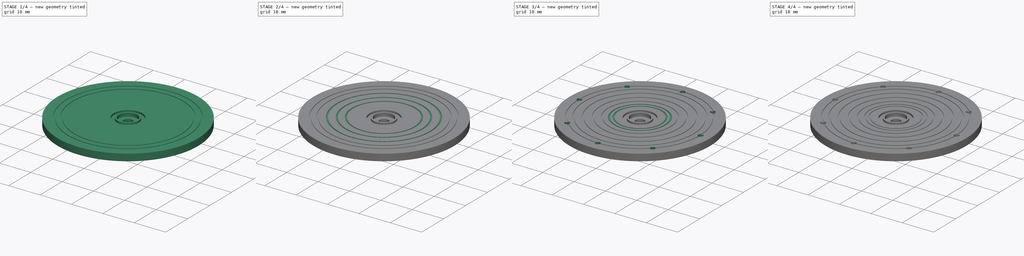
[diagram: build sequence overview — one tinted view per stage of 4, left to right]
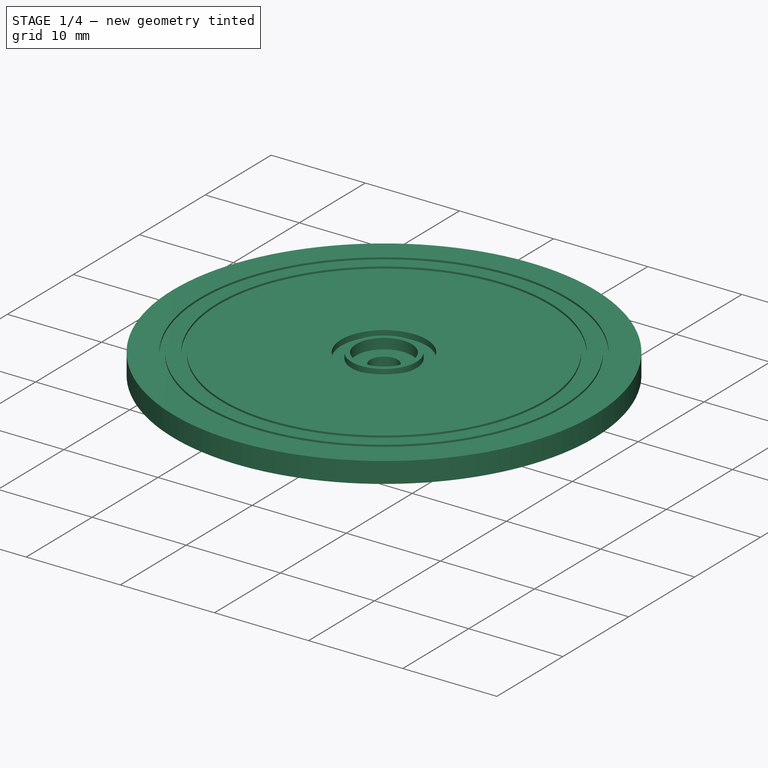
[diagram: stage 1 of 4 — iso view after this stage's code; geometry added in this stage tinted green]
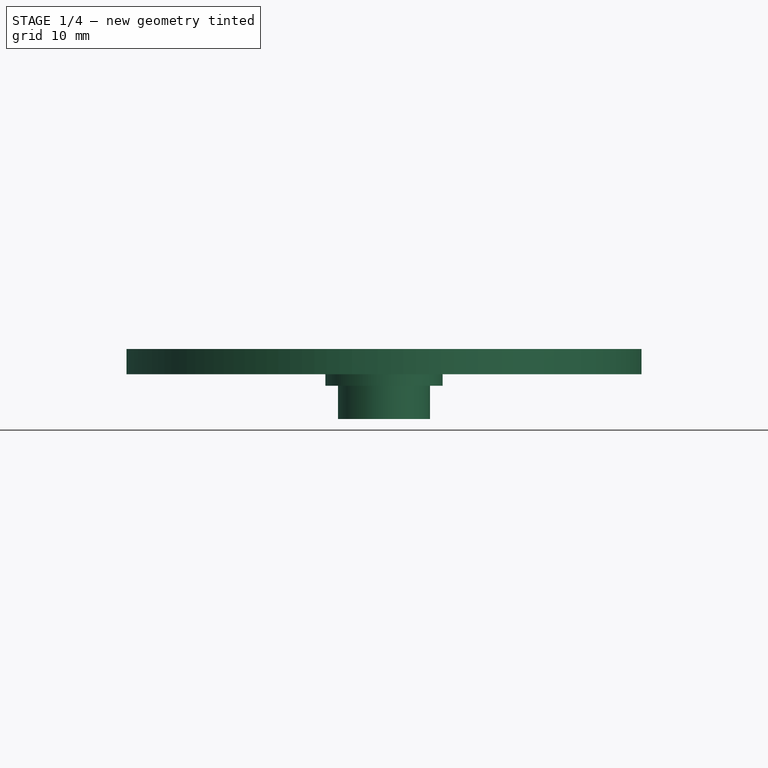
[diagram: stage 1 of 4 — front view after this stage's code; geometry added in this stage tinted green]
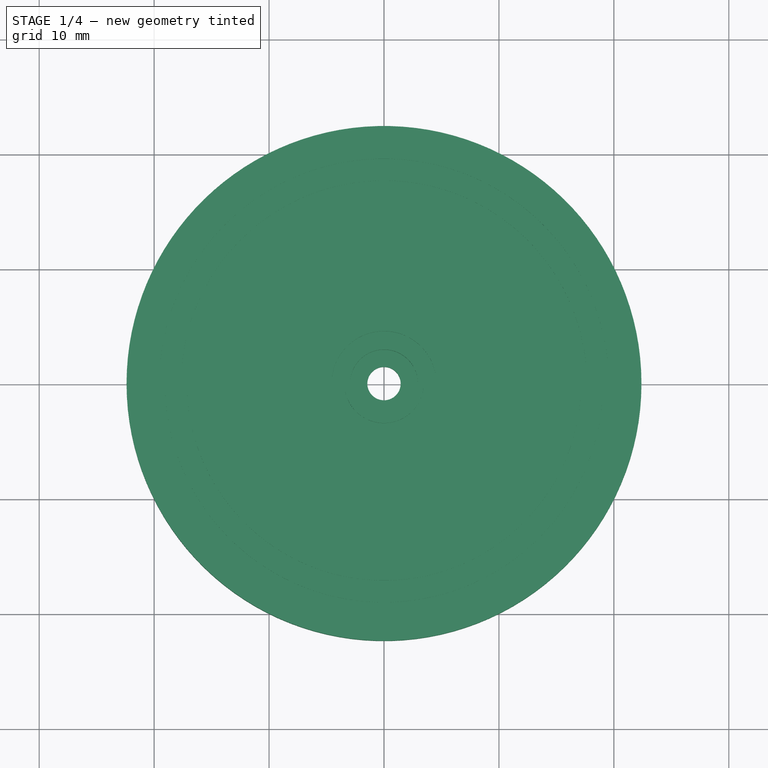
[diagram: stage 1 of 4 — top view after this stage's code; geometry added in this stage tinted green]
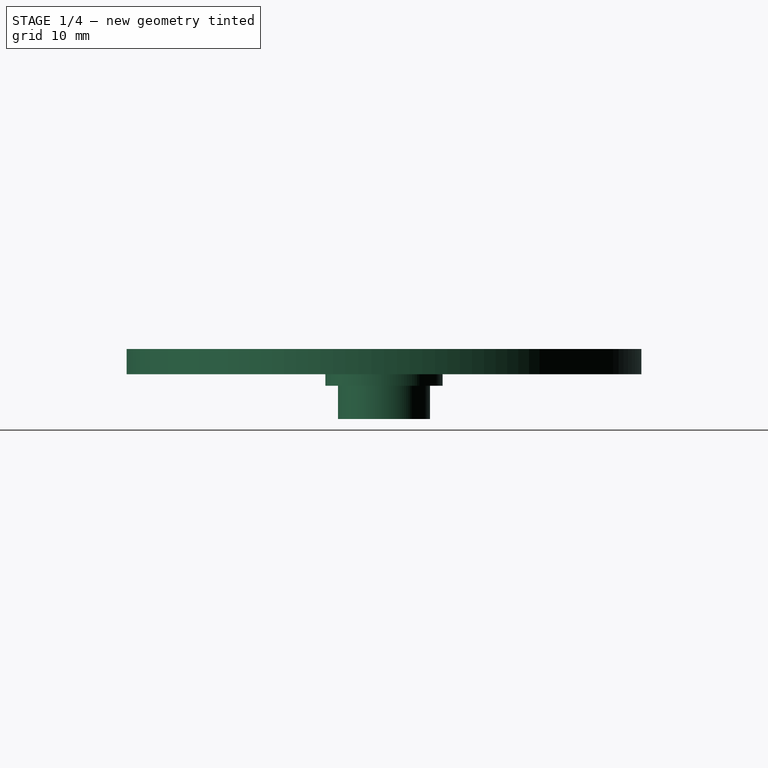
[diagram: stage 1 of 4 — right view after this stage's code; geometry added in this stage tinted green]
FCSTD DOCUMENT  (FreeCAD 0.14R3702 (Git))
Label: SM-S4303R-big-rounded-horn
License: CC-BY 3.0
LicenseURL: http://creativecommons.org/licenses/by/3.0/
objects: Sketcher::SketchObject×9, PartDesign::Pocket×8, Part::Chamfer×2, PartDesign::Revolution×1, PartDesign::PolarPattern×1, Part::Fillet×1
note: 31 computed .brp shape members not serialized (recipe doc carries the construction recipe); baked Part::Feature solids carry a one-line shape summary decoded from their .brp

FEATURE [Sketcher::SketchObject] Sketch  label="horn-section-sketch"
  Placement = pos=(0,0,0) rot=(-1,0,0;4.71239rad)
  sketch-geometry (16):
    g0: LineSegment StartX=5.1 StartY=0 StartZ=0 EndX=22.4 EndY=0 EndZ=0
    g1: LineSegment StartX=22.4 StartY=0 StartZ=0 EndX=22.4 EndY=2.2 EndZ=0
    g2: LineSegment StartX=22.4 StartY=2.2 StartZ=0 EndX=4.55 EndY=2.2 EndZ=0
    g3: LineSegment StartX=4.55 StartY=2.2 StartZ=0 EndX=4.55 EndY=1.6 EndZ=0
    g4: LineSegment StartX=4.55 StartY=1.6 StartZ=0 EndX=3.45 EndY=1.6 EndZ=0
    g5: LineSegment StartX=3.45 StartY=1.6 StartZ=0 EndX=3.45 EndY=2.2 EndZ=0
    g6: LineSegment StartX=3.45 StartY=2.2 StartZ=0 EndX=2.95 EndY=2.2 EndZ=0
    g7: LineSegment StartX=2.95 StartY=2.2 StartZ=0 EndX=2.95 EndY=1.1 EndZ=0
    g8: LineSegment StartX=2.95 StartY=1.1 StartZ=0 EndX=1.45 EndY=1.1 EndZ=0
    g9: LineSegment StartX=1.45 StartY=1.1 StartZ=0 EndX=1.45 EndY=-0.1 EndZ=0
    g10: LineSegment StartX=1.45 StartY=-0.1 StartZ=0 EndX=2.925 EndY=-0.1 EndZ=0
    g11: LineSegment StartX=2.925 StartY=-0.1 StartZ=0 EndX=2.925 EndY=-3.9 EndZ=0
    g12: LineSegment StartX=2.925 StartY=-3.9 StartZ=0 EndX=4 EndY=-3.9 EndZ=0
    g13: LineSegment StartX=4 StartY=-3.9 StartZ=0 EndX=4 EndY=-1 EndZ=0
    g14: LineSegment StartX=4 StartY=-1 StartZ=0 EndX=5.1 EndY=-1 EndZ=0
    g15: LineSegment StartX=5.1 StartY=-1 StartZ=0 EndX=5.1 EndY=0 EndZ=0
  constraints (48):
    c: PointOnObject(g0,g-1)
    c: Horizontal(g0)
    c: Coincident(g0,g1)
    c: Coincident(g1,g2)
    c: Horizontal(g2)
    c: Coincident(g2,g3)
    c: Coincident(g3,g4)
    c: Coincident(g4,g5)
    c: Vertical(g5)
    c: Coincident(g5,g6)
    c: Coincident(g6,g7)
    c: Coincident(g7,g8)
    c: Horizontal(g8)
    c: Coincident(g8,g9)
    c: Vertical(g9)
    c: Coincident(g9,g10)
    c: Horizontal(g10)
    c: Coincident(g10,g11)
    c: Vertical(g11)
    c: Coincident(g11,g12)
    c: Horizontal(g12)
    c: Coincident(g12,g13)
    c: Vertical(g13)
    c: Coincident(g13,g14)
    c: Horizontal(g14)
    c: Coincident(g14,g15)
    c: Coincident(g15,g0)
    c: Vertical(g15)
    c: Vertical(g1)
    c: Horizontal(g4)
    c: Horizontal(g6)
    c: Vertical(g3)
    c: Vertical(g7)
    c: DistanceX(g-1,g8) = 1.45
    c: DistanceX(g-1,g7) = 2.95
    c: DistanceX(g-1,g5) = 3.45
    c: DistanceX(g-1,g3) = 4.55
    c: DistanceX(g-1,g1) = 22.4
    c: PointOnObject(g5,g2)
    c: DistanceY(g1) = 2.2
    c: DistanceY(g6,g7) = -1.1
    c: DistanceY(g2,g3) = -0.6
    c: DistanceX(g-1,g0) = 5.1
    c: DistanceX(g-1,g12) = 4
    c: DistanceX(g-1,g11) = 2.925
    c: DistanceY(g1,g12) = -6.1
    c: DistanceY(g15) = 1
    c: DistanceY(g11) = -3.8
FEATURE [PartDesign::Revolution] Revolution  label="horn-body-1"
  Angle = 360
  Axis = (0,0,1)
  Base = (0,0,0)
  Placement = pos=(0,0,0) rot=(-1,0,0;4.71239rad)
  ReferenceAxis = -> Sketch [V_Axis]
  Reversed = true
  Sketch = -> Sketch
FEATURE [Sketcher::SketchObject] Sketch001  label="ring-1-sketch"
  Placement = pos=(0,0,2.2) rot=(0,0,1;3.14159rad)
  Support = -> Revolution [Face3]
  sketch-geometry (2):
    g0: Circle CenterX=0 CenterY=0 CenterZ=0 NormalX=0 NormalY=0 NormalZ=1 Radius=19.55
    g1: Circle CenterX=0 CenterY=0 CenterZ=0 NormalX=0 NormalY=0 NormalZ=1 Radius=19.05
  constraints (4):
    c: Coincident(g0,g-1)
    c: Radius(g0) = 19.55
    c: Coincident(g1,g-1)
    c: Radius(g1) = 19.05
FEATURE [PartDesign::Pocket] Pocket  label="ring-1"
  Length = 0.2
  Placement = pos=(0,0,0) rot=(-1,0,0;4.71239rad)
  Sketch = -> Sketch001
  Type = 0
FEATURE [Sketcher::SketchObject] Sketch002  label="ring-2-sketch"
  Placement = pos=(0,0,2.2) rot=(0,0,1;3.14159rad)
  Support = -> Pocket [Face13]
  sketch-geometry (2):
    g0: Circle CenterX=0 CenterY=0 CenterZ=0 NormalX=0 NormalY=0 NormalZ=1 Radius=17.65
    g1: Circle CenterX=0 CenterY=0 CenterZ=0 NormalX=0 NormalY=0 NormalZ=1 Radius=17.15
  constraints (4):
    c: Coincident(g0,g-1)
    c: Radius(g0) = 17.65
    c: Coincident(g1,g-1)
    c: Radius(g1) = 17.15
FEATURE [PartDesign::Pocket] Pocket001  label="ring-2"
  Length = 0.2
  Placement = pos=(0,0,0) rot=(-1,0,0;4.71239rad)
  Sketch = -> Sketch002
  Type = 0
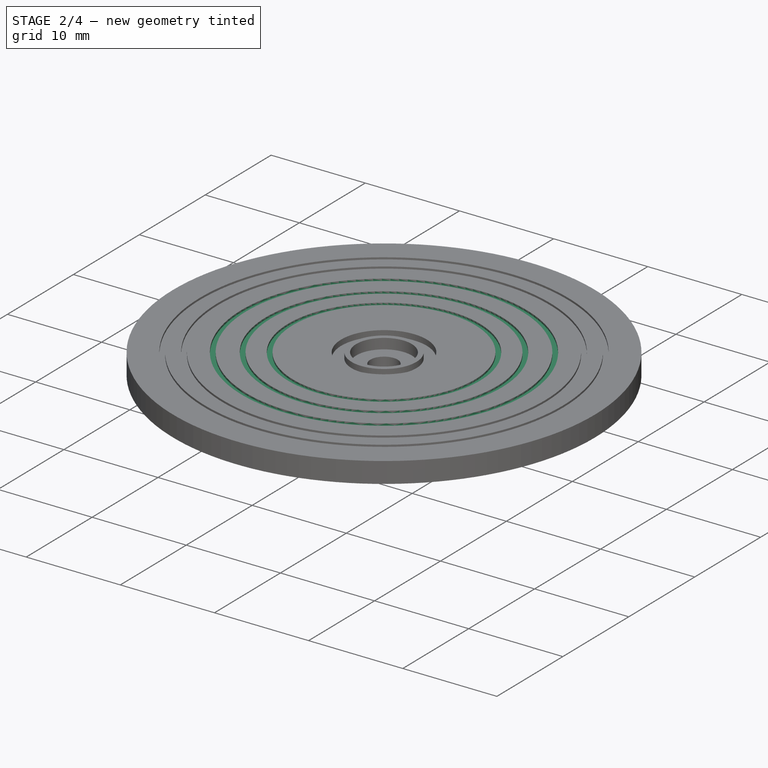
[diagram: stage 2 of 4 — iso view after this stage's code; geometry added in this stage tinted green]
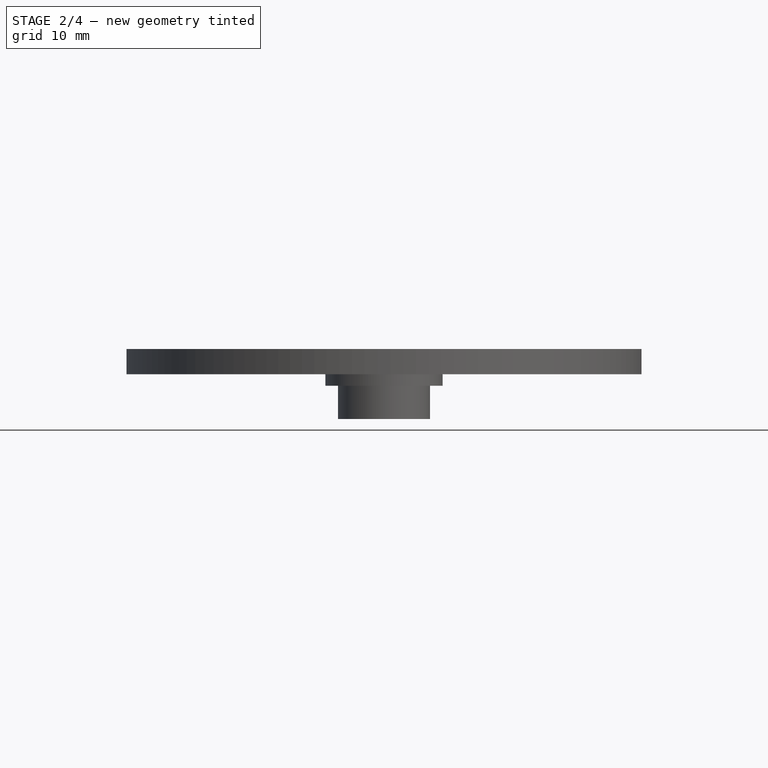
[diagram: stage 2 of 4 — front view after this stage's code; geometry added in this stage tinted green]
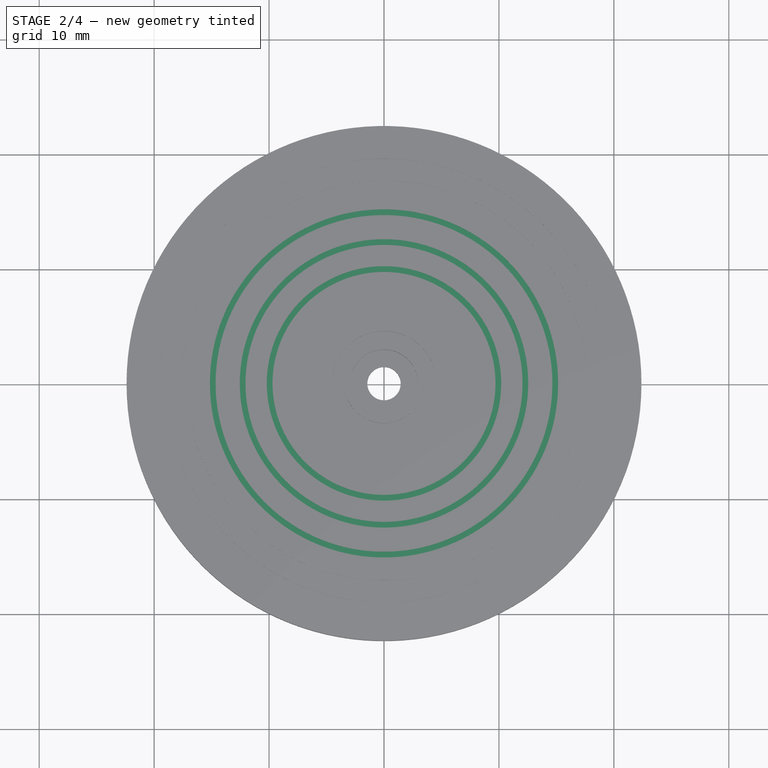
[diagram: stage 2 of 4 — top view after this stage's code; geometry added in this stage tinted green]
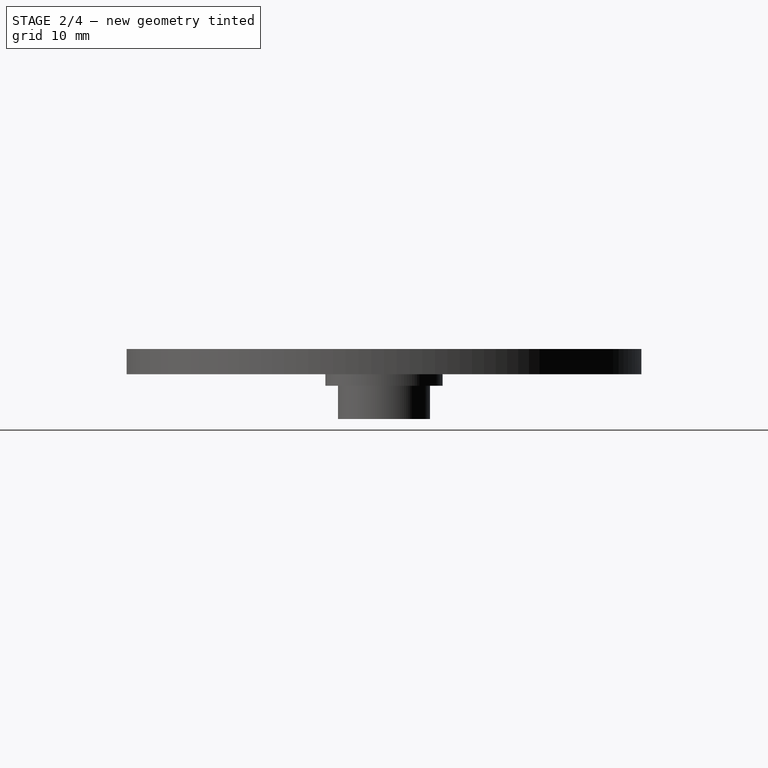
[diagram: stage 2 of 4 — right view after this stage's code; geometry added in this stage tinted green]
FEATURE [Sketcher::SketchObject] Sketch003  label="ring-3-sketch"
  Placement = pos=(0,0,2.2) rot=(0,0,1;3.14159rad)
  Support = -> Pocket001 [Face21]
  sketch-geometry (2):
    g0: Circle CenterX=0 CenterY=0 CenterZ=0 NormalX=0 NormalY=0 NormalZ=1 Radius=15.15
    g1: Circle CenterX=0 CenterY=0 CenterZ=0 NormalX=0 NormalY=0 NormalZ=1 Radius=14.65
  constraints (4):
    c: Coincident(g0,g-1)
    c: Radius(g0) = 15.15
    c: Coincident(g1,g-1)
    c: Radius(g1) = 14.65
FEATURE [PartDesign::Pocket] Pocket002  label="ring-3"
  Length = 0.2
  Placement = pos=(0,0,0) rot=(-1,0,0;4.71239rad)
  Sketch = -> Sketch003
  Type = 0
FEATURE [Sketcher::SketchObject] Sketch004  label="ring-4-sketch"
  Placement = pos=(0,0,2.2) rot=(0,0,1;3.14159rad)
  Support = -> Pocket002 [Face28]
  sketch-geometry (2):
    g0: Circle CenterX=0 CenterY=0 CenterZ=0 NormalX=0 NormalY=0 NormalZ=1 Radius=12.55
    g1: Circle CenterX=0 CenterY=0 CenterZ=0 NormalX=0 NormalY=0 NormalZ=1 Radius=12.05
  constraints (4):
    c: Coincident(g0,g-1)
    c: Radius(g0) = 12.55
    c: Coincident(g1,g-1)
    c: Radius(g1) = 12.05
FEATURE [PartDesign::Pocket] Pocket003  label="ring-4"
  Length = 0.2
  Placement = pos=(0,0,0) rot=(-1,0,0;4.71239rad)
  Sketch = -> Sketch004
  Type = 0
FEATURE [Sketcher::SketchObject] Sketch005  label="ring-5-sketch"
  Placement = pos=(0,0,2.2) rot=(0,0,1;3.14159rad)
  Support = -> Pocket003 [Face28]
  sketch-geometry (2):
    g0: Circle CenterX=0 CenterY=0 CenterZ=0 NormalX=0 NormalY=0 NormalZ=1 Radius=10.2
    g1: Circle CenterX=0 CenterY=0 CenterZ=0 NormalX=0 NormalY=0 NormalZ=1 Radius=9.7
  constraints (4):
    c: Coincident(g0,g-1)
    c: Radius(g0) = 10.2
    c: Coincident(g1,g-1)
    c: Radius(g1) = 9.7
FEATURE [PartDesign::Pocket] Pocket004  label="ring-5"
  Length = 0.2
  Placement = pos=(0,0,0) rot=(-1,0,0;4.71239rad)
  Sketch = -> Sketch005
  Type = 0
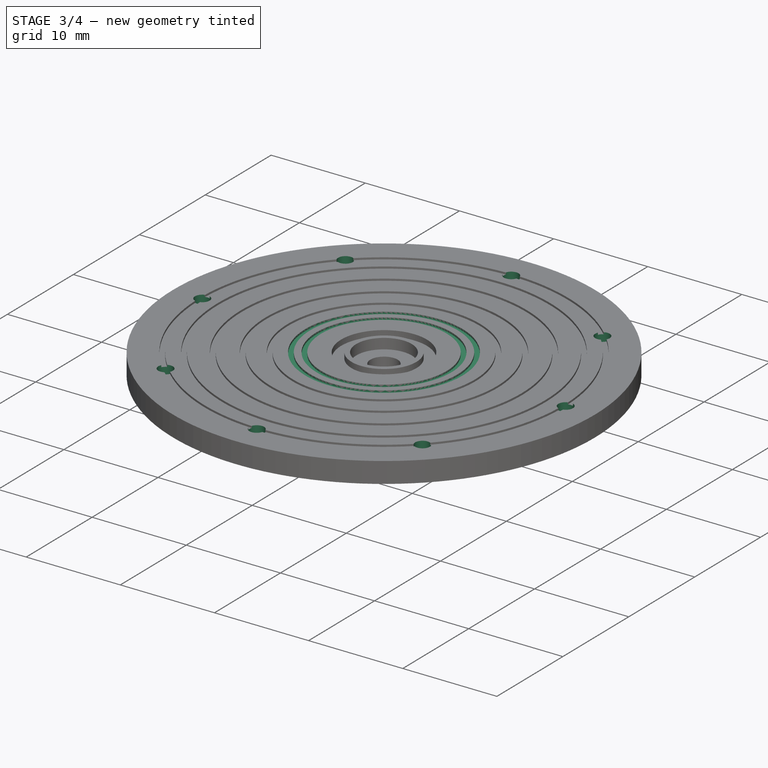
[diagram: stage 3 of 4 — iso view after this stage's code; geometry added in this stage tinted green]
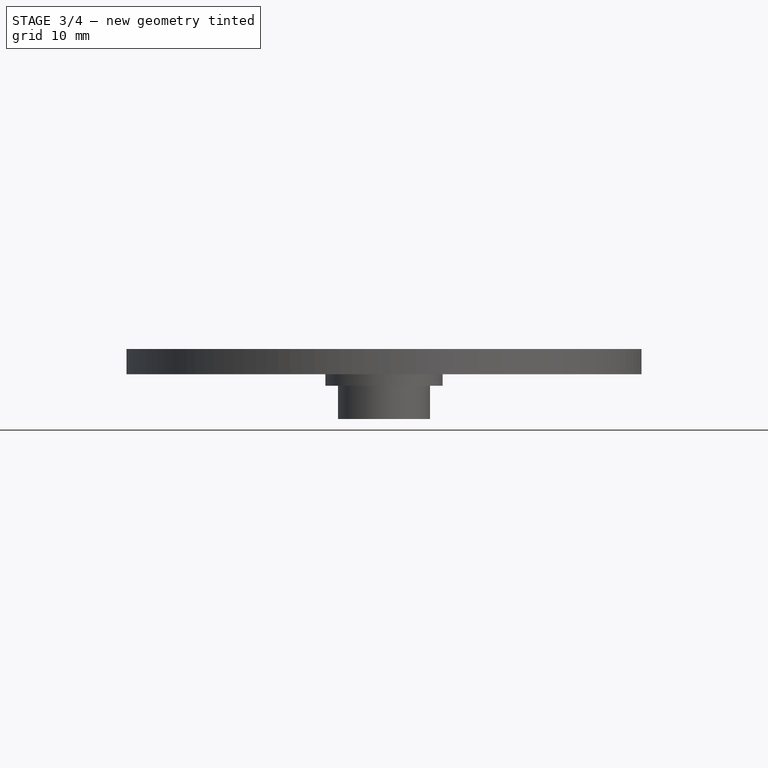
[diagram: stage 3 of 4 — front view after this stage's code; geometry added in this stage tinted green]
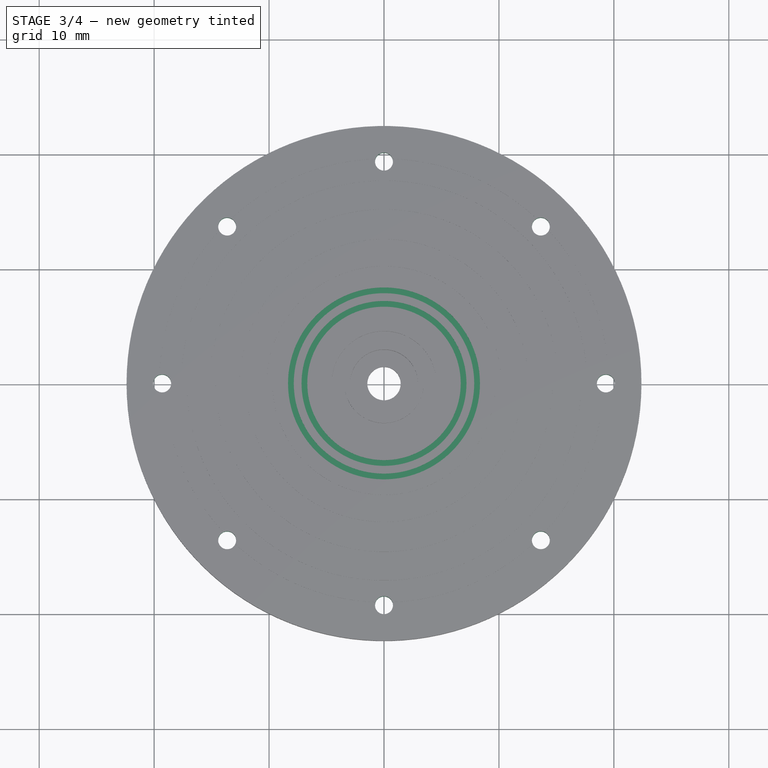
[diagram: stage 3 of 4 — top view after this stage's code; geometry added in this stage tinted green]
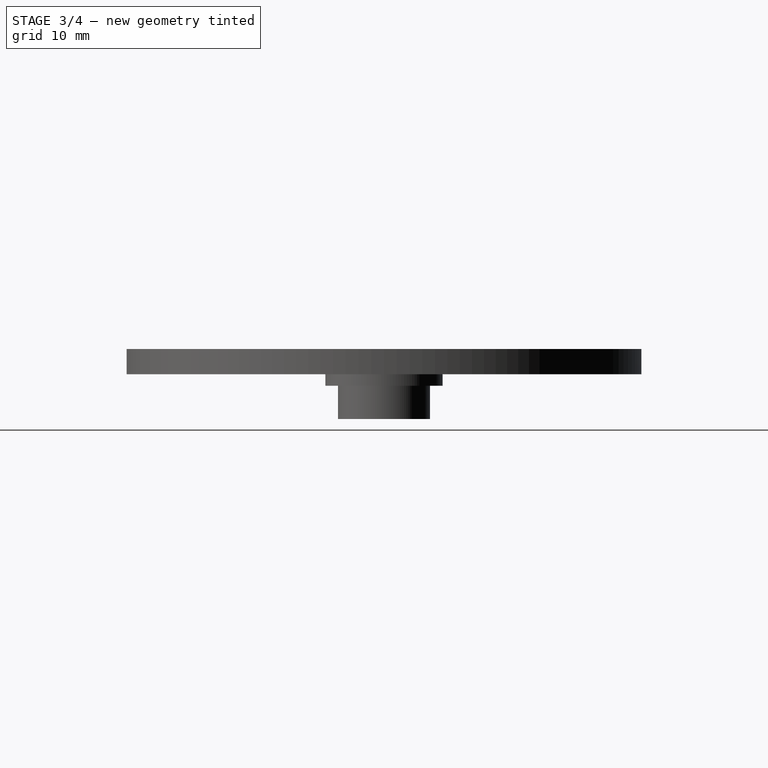
[diagram: stage 3 of 4 — right view after this stage's code; geometry added in this stage tinted green]
FEATURE [Sketcher::SketchObject] Sketch006  label="ring-6-sketch"
  Placement = pos=(0,0,2.2) rot=(0,0,1;3.14159rad)
  Support = -> Pocket004 [Face28]
  sketch-geometry (2):
    g0: Circle CenterX=0 CenterY=0 CenterZ=0 NormalX=0 NormalY=0 NormalZ=1 Radius=8.35
    g1: Circle CenterX=0 CenterY=0 CenterZ=0 NormalX=0 NormalY=0 NormalZ=1 Radius=7.85
  constraints (4):
    c: Coincident(g0,g-1)
    c: Radius(g0) = 8.35
    c: Coincident(g1,g-1)
    c: Radius(g1) = 7.85
FEATURE [PartDesign::Pocket] Pocket005  label="ring-6"
  Length = 0.2
  Placement = pos=(0,0,0) rot=(-1,0,0;4.71239rad)
  Sketch = -> Sketch006
  Type = 0
FEATURE [Sketcher::SketchObject] Sketch007  label="ring-7-sketch"
  Placement = pos=(0,0,2.2) rot=(0,0,1;3.14159rad)
  Support = -> Pocket005 [Face28]
  sketch-geometry (2):
    g0: Circle CenterX=0 CenterY=0 CenterZ=0 NormalX=0 NormalY=0 NormalZ=1 Radius=7.175
    g1: Circle CenterX=0 CenterY=0 CenterZ=0 NormalX=0 NormalY=0 NormalZ=1 Radius=6.675
  constraints (4):
    c: Coincident(g0,g-1)
    c: Radius(g0) = 7.175
    c: Coincident(g1,g-1)
    c: Radius(g1) = 6.675
FEATURE [PartDesign::Pocket] Pocket006  label="ring-7"
  Length = 0.2
  Placement = pos=(0,0,0) rot=(-1,0,0;4.71239rad)
  Sketch = -> Sketch007
  Type = 0
FEATURE [Sketcher::SketchObject] Sketch008  label="drill-1-sketch"
  Placement = pos=(0,0,2.2) rot=(0,0,1;3.14159rad)
  Support = -> Pocket006 [Face5]
  sketch-geometry (1):
    g0: Circle CenterX=0 CenterY=19.3 CenterZ=0 NormalX=0 NormalY=0 NormalZ=1 Radius=0.78
  constraints (3):
    c: PointOnObject(g0,g-2)
    c: Radius(g0) = 0.78
    c: DistanceY(g-1,g0) = 19.3
FEATURE [PartDesign::Pocket] Pocket007  label="drill-1"
  Length = 5
  Placement = pos=(0,0,0) rot=(-1,0,0;4.71239rad)
  Sketch = -> Sketch008
  Type = 1
FEATURE [PartDesign::PolarPattern] PolarPattern  label="drills"
  Angle = 360
  Axis = -> Sketch008 [N_Axis]
  Occurrences = 8
  Originals = -> [Pocket007]
  Placement = pos=(0,0,0) rot=(-1,0,0;4.71239rad)
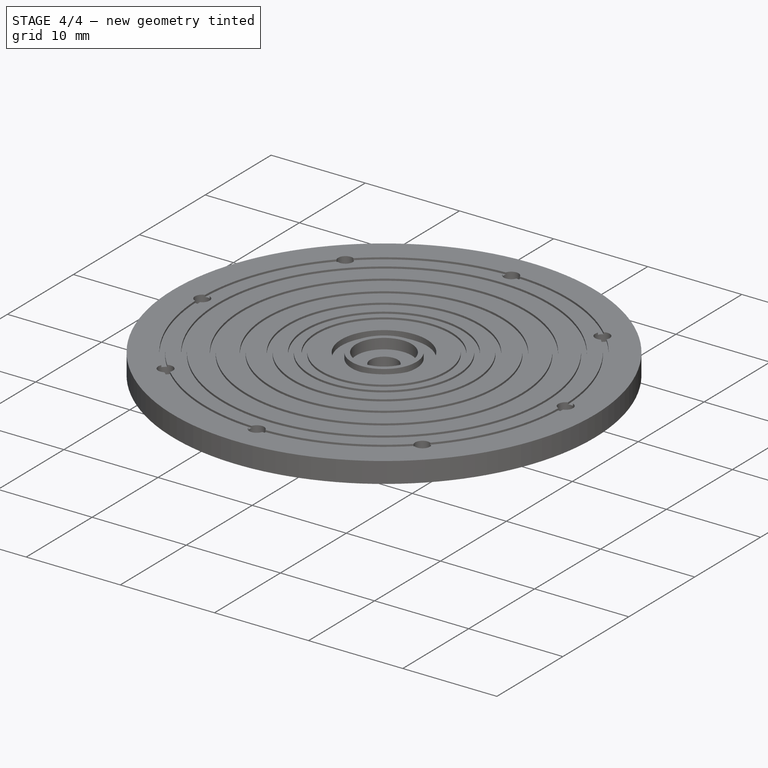
[diagram: stage 4 of 4 — iso view after this stage's code; geometry added in this stage tinted green]
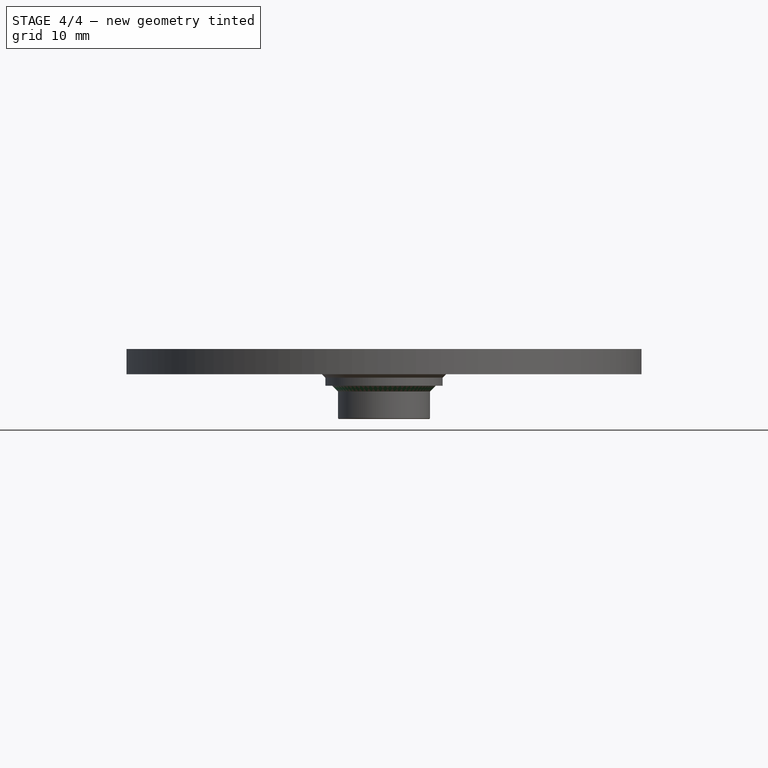
[diagram: stage 4 of 4 — front view after this stage's code; geometry added in this stage tinted green]
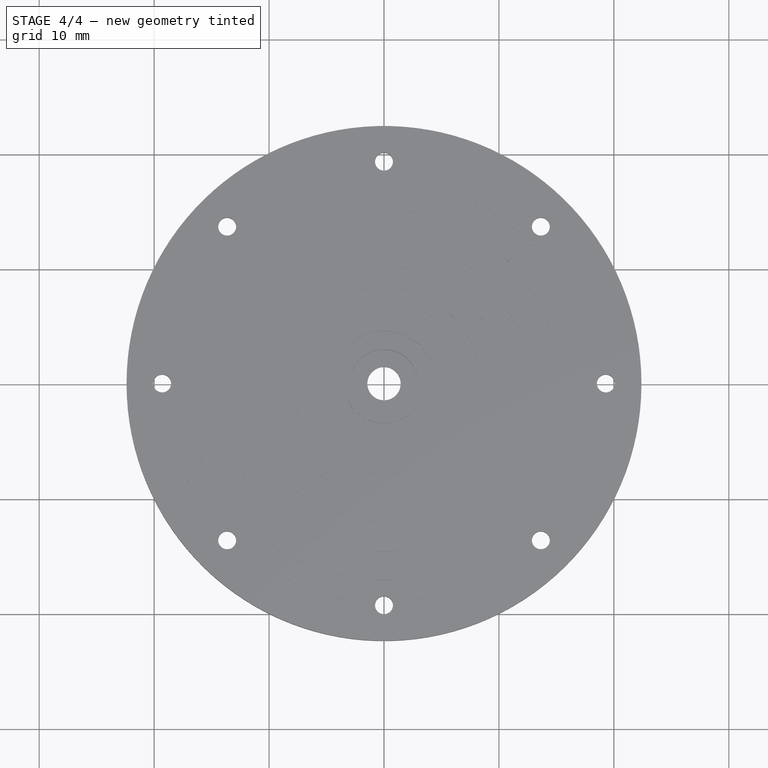
[diagram: stage 4 of 4 — top view after this stage's code; geometry added in this stage tinted green]
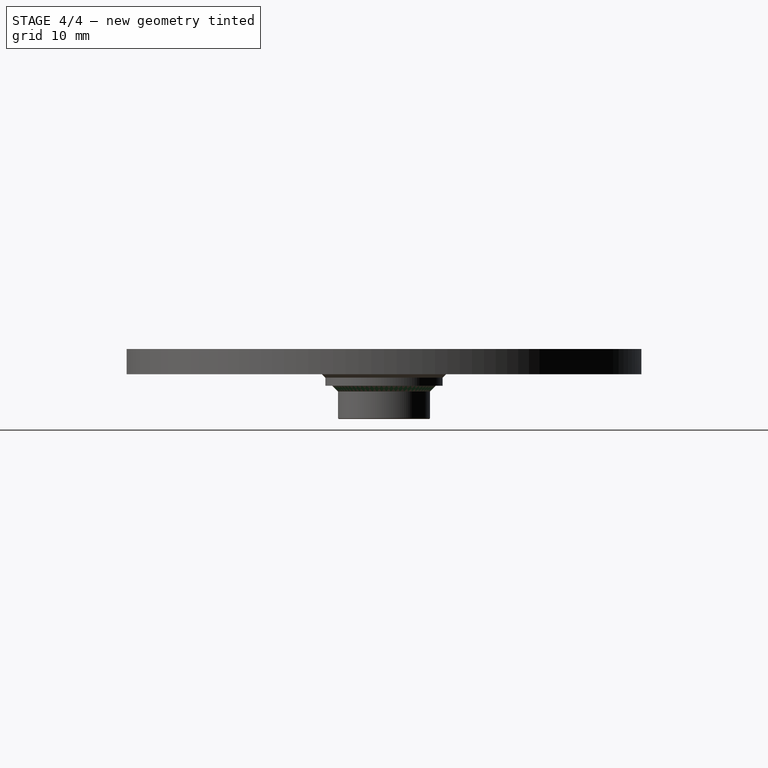
[diagram: stage 4 of 4 — right view after this stage's code; geometry added in this stage tinted green]
FEATURE [Part::Chamfer] Chamfer
  Base = -> PolarPattern
  Edges = 1 edges r=0.3: [Edge2]
FEATURE [Part::Chamfer] Chamfer001
  Base = -> Chamfer
  Edges = 1 edges r=0.5: [Edge130]
FEATURE [Part::Fillet] Fillet  label="rounded-horn-final"
  Base = -> Chamfer001
  Edges = 1 edges r=0.1: [Edge8]
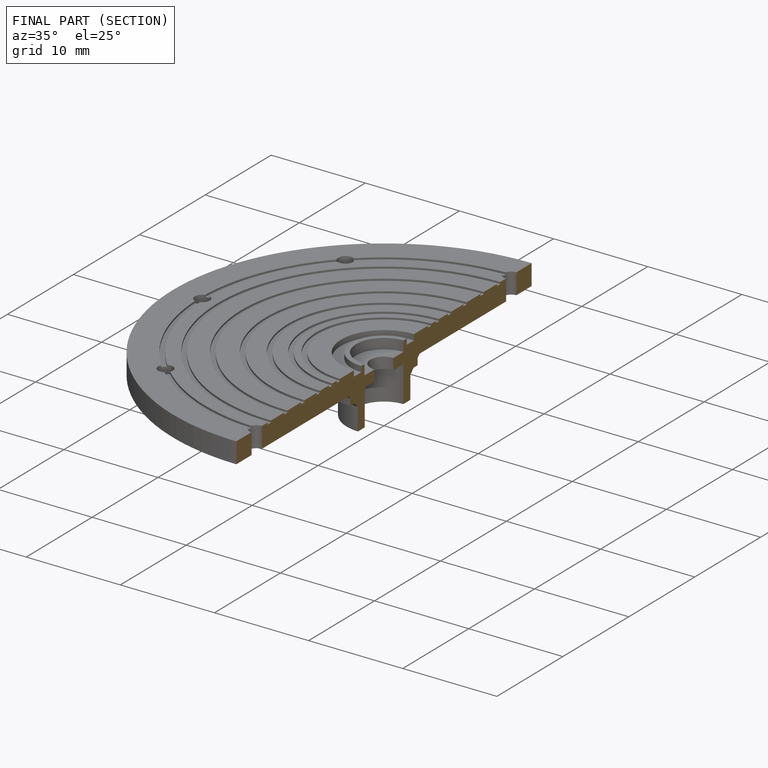
[diagram: finished part — half-section view (interior)]
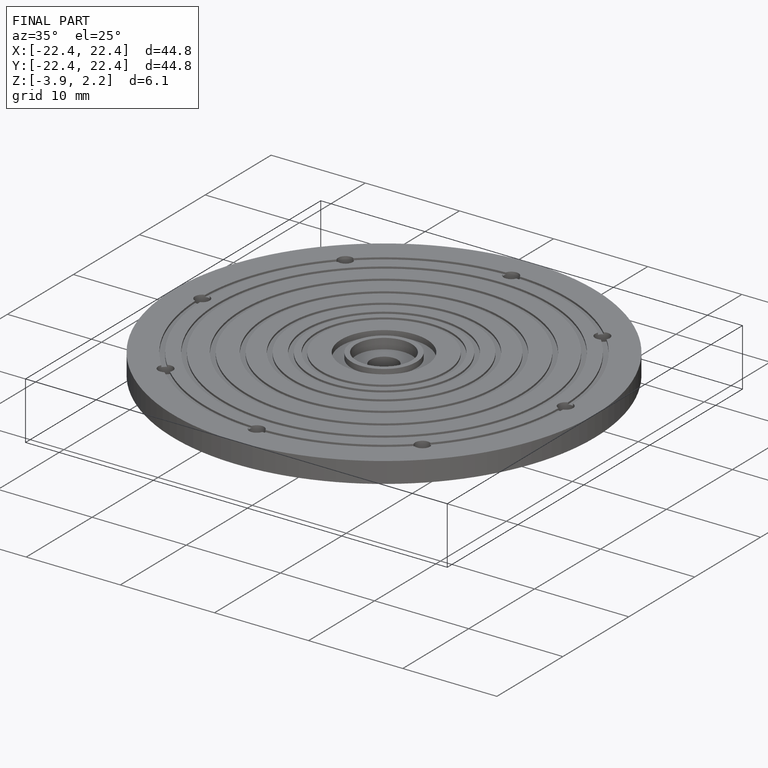
[diagram: finished part — iso view with bounding-box wireframe]
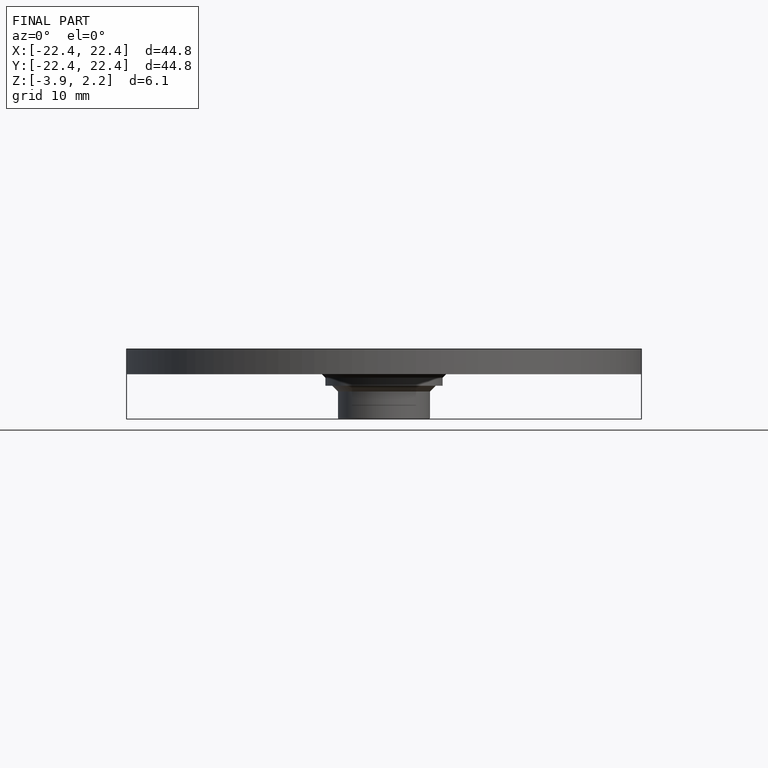
[diagram: finished part — front view with bounding-box wireframe]
